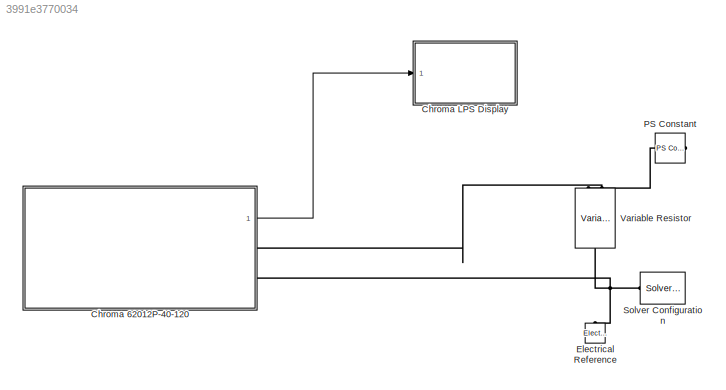
MODEL slx_3991e3770034
KIND model
CONFIG AbsTol = auto
CONFIG EnableMultiTasking = off
CONFIG FixedStep = 1e-4
CONFIG MaxStep = auto
CONFIG MinStep = auto
CONFIG RelTol = 1e-2
CONFIG SampleTimeConstraint = Unconstrained
CONFIG SolverName = ode45
CONFIG StartTime = 0.0
CONFIG StopTime = tFinal
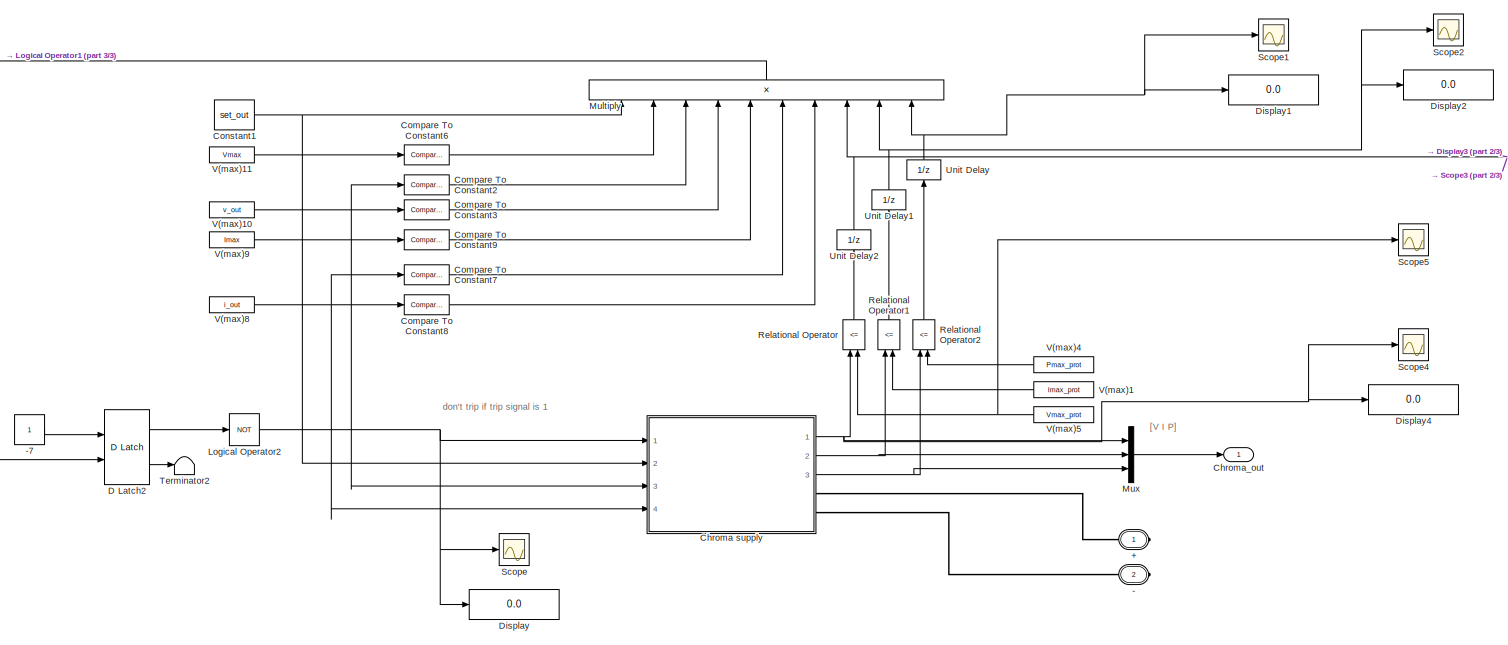
[diagram: Chroma 62012P-40-120 - part 1/3, most of the canvas]
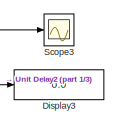
[diagram: Chroma 62012P-40-120 - part 2/3, top right region]
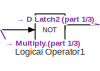
[diagram: Chroma 62012P-40-120 - part 3/3, bottom left region]
BLOCK [SubSystem] Chroma 62012P-40-120
  Ports = [0, 1, 0, 0, 0, 0, 2]
  RequestExecContextInheritance = off
BLOCK [PMIOPort] Chroma 62012P-40-120/+
  NameLocation = top
  Side = Right
BLOCK [PMIOPort] Chroma 62012P-40-120/-
  NameLocation = top
  Port = 2
  Side = Right
BLOCK [Constant] Chroma 62012P-40-120/-7
  OutDataTypeStr = boolean
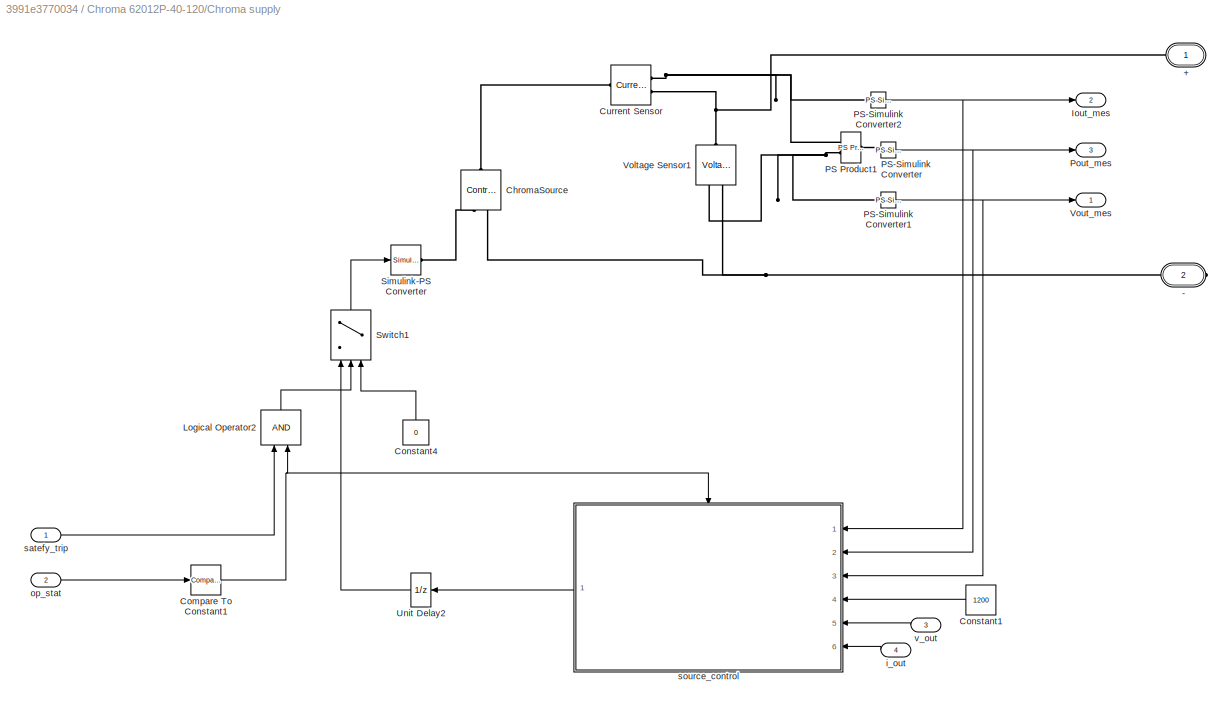
BLOCK [SubSystem] Chroma 62012P-40-120/Chroma supply
  Ports = [4, 3, 0, 0, 0, 0, 2]
  RequestExecContextInheritance = off
BLOCK [PMIOPort] Chroma 62012P-40-120/Chroma supply/+
  NameLocation = top
  Side = Right
  Tag = PMCPort
BLOCK [PMIOPort] Chroma 62012P-40-120/Chroma supply/-
  NameLocation = top
  Port = 2
  Side = Right
  Tag = PMCPort
BLOCK [Reference] Chroma 62012P-40-120/Chroma supply/ChromaSource  REF=fl_lib/Electrical/Electrical Sources/Controlled Voltage
Source
  NameLocation = right
  Ports = [0, 0, 0, 0, 0, 1, 2]
  SourceBlock = fl_lib/Electrical/Electrical Sources/Controlled Voltage\nSource
  SourceProductBaseCode = SS
  SourceType = Controlled Voltage\nSource
BLOCK [Reference] Chroma 62012P-40-120/Chroma supply/Compare To Constant1  REF=simulink/Logic and Bit
Operations/Compare
To Constant
  Ports = [1, 1]
  SourceBlock = simulink/Logic and Bit\nOperations/Compare\nTo Constant
  SourceProductBaseCode = SL
  SourceType = Compare To Constant
BLOCK [Constant] Chroma 62012P-40-120/Chroma supply/Constant1
  Value = 1200
BLOCK [Constant] Chroma 62012P-40-120/Chroma supply/Constant4
  NameLocation = right
  Value = 0
BLOCK [Reference] Chroma 62012P-40-120/Chroma supply/Current Sensor  REF=fl_lib/Electrical/Electrical Sensors/Current Sensor
  Ports = [0, 0, 0, 0, 0, 1, 2]
  SourceBlock = fl_lib/Electrical/Electrical Sensors/Current Sensor
  SourceProductBaseCode = SS
  SourceType = Current Sensor
BLOCK [Outport] Chroma 62012P-40-120/Chroma supply/Iout_mes
  Port = 2
  VectorParamsAs1DForOutWhenUnconnected = off
BLOCK [Logic] Chroma 62012P-40-120/Chroma supply/Logical Operator2
  AllPortsSameDT = off
  NameLocation = left
  OutDataTypeStr = boolean
  Ports = [2, 1]
BLOCK [Reference] Chroma 62012P-40-120/Chroma supply/PS Product1  REF=fl_lib/Physical Signals/Functions/PS Product
  Ports = [0, 0, 0, 0, 0, 2, 1]
  SourceBlock = fl_lib/Physical Signals/Functions/PS Product
  SourceProductBaseCode = SS
  SourceType = PS Product
BLOCK [Reference] Chroma 62012P-40-120/Chroma supply/PS-Simulink Converter  REF=nesl_utility/PS-Simulink
Converter
  Ports = [0, 1, 0, 0, 0, 1]
  SourceBlock = nesl_utility/PS-Simulink\nConverter
  SourceProductBaseCode = SS
  SourceType = PS-Simulink\nConverter
BLOCK [Reference] Chroma 62012P-40-120/Chroma supply/PS-Simulink Converter1  REF=nesl_utility/PS-Simulink
Converter
  Ports = [0, 1, 0, 0, 0, 1]
  SourceBlock = nesl_utility/PS-Simulink\nConverter
  SourceProductBaseCode = SS
  SourceType = PS-Simulink\nConverter
BLOCK [Reference] Chroma 62012P-40-120/Chroma supply/PS-Simulink Converter2  REF=nesl_utility/PS-Simulink
Converter
  Ports = [0, 1, 0, 0, 0, 1]
  SourceBlock = nesl_utility/PS-Simulink\nConverter
  SourceProductBaseCode = SS
  SourceType = PS-Simulink\nConverter
BLOCK [Outport] Chroma 62012P-40-120/Chroma supply/Pout_mes
  Port = 3
  VectorParamsAs1DForOutWhenUnconnected = off
BLOCK [Reference] Chroma 62012P-40-120/Chroma supply/Simulink-PS Converter  REF=nesl_utility/Simulink-PS
Converter
  Ports = [1, 0, 0, 0, 0, 0, 1]
  SourceBlock = nesl_utility/Simulink-PS\nConverter
  SourceProductBaseCode = SS
  SourceType = Simulink-PS\nConverter
BLOCK [Switch] Chroma 62012P-40-120/Chroma supply/Switch1
  Criteria = u2 > Threshold
  InputSameDT = off
  NameLocation = left
BLOCK [UnitDelay] Chroma 62012P-40-120/Chroma supply/Unit Delay2
  HasFrameUpgradeWarning = on
  InitialCondition = 1
  NameLocation = top
  SampleTime = -1
BLOCK [Reference] Chroma 62012P-40-120/Chroma supply/Voltage Sensor1  REF=fl_lib/Electrical/Electrical Sensors/Voltage Sensor
  NameLocation = right
  Ports = [0, 0, 0, 0, 0, 1, 2]
  SourceBlock = fl_lib/Electrical/Electrical Sensors/Voltage Sensor
  SourceProductBaseCode = SS
  SourceType = Voltage Sensor
BLOCK [Outport] Chroma 62012P-40-120/Chroma supply/Vout_mes
  VectorParamsAs1DForOutWhenUnconnected = off
BLOCK [Inport] Chroma 62012P-40-120/Chroma supply/i_out
  Port = 4
BLOCK [Inport] Chroma 62012P-40-120/Chroma supply/op_stat 
  Port = 2
BLOCK [Inport] Chroma 62012P-40-120/Chroma supply/satefy_trip
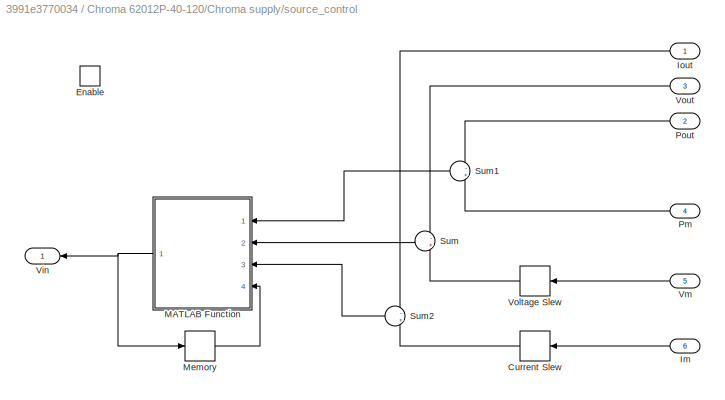
BLOCK [SubSystem] Chroma 62012P-40-120/Chroma supply/source_control
  Ports = [6, 1, 1]
  RequestExecContextInheritance = off
BLOCK [RateLimiter] Chroma 62012P-40-120/Chroma supply/source_control/Current Slew
  FallingSlewLimit = -Islew
  RisingSlewLimit = Islew
BLOCK [EnablePort] Chroma 62012P-40-120/Chroma supply/source_control/Enable
  Ports = []
BLOCK [Inport] Chroma 62012P-40-120/Chroma supply/source_control/Im
  Port = 6
BLOCK [Inport] Chroma 62012P-40-120/Chroma supply/source_control/Iout
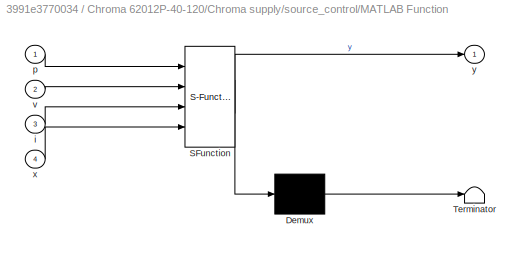
BLOCK [SubSystem] Chroma 62012P-40-120/Chroma supply/source_control/MATLAB Function
  ErrorFcn = Stateflow.Translate.translate
  PermitHierarchicalResolution = ExplicitOnly
  Ports = [4, 1]
  RequestExecContextInheritance = off
  SFBlockType = MATLAB Function
  TreatAsAtomicUnit = on
BLOCK [Demux] Chroma 62012P-40-120/Chroma supply/source_control/MATLAB Function/ Demux 
  Outputs = 1
  Ports = [1, 1]
BLOCK [S-Function] Chroma 62012P-40-120/Chroma supply/source_control/MATLAB Function/ SFunction 
  EnableBusSupport = on
  FunctionName = sf_sfun
  PortCounts = [4 2]
  Ports = [4, 2]
  SFcnIsStateOwnerBlock = off
  SFunctionDeploymentMode = off
  Tag = Stateflow S-Function 1
BLOCK [Terminator] Chroma 62012P-40-120/Chroma supply/source_control/MATLAB Function/ Terminator 
BLOCK [Inport] Chroma 62012P-40-120/Chroma supply/source_control/MATLAB Function/i
  Port = 3
BLOCK [Inport] Chroma 62012P-40-120/Chroma supply/source_control/MATLAB Function/p
BLOCK [Inport] Chroma 62012P-40-120/Chroma supply/source_control/MATLAB Function/v
  Port = 2
BLOCK [Inport] Chroma 62012P-40-120/Chroma supply/source_control/MATLAB Function/x
  Port = 4
BLOCK [Outport] Chroma 62012P-40-120/Chroma supply/source_control/MATLAB Function/y
  VectorParamsAs1DForOutWhenUnconnected = off
BLOCK [Memory] Chroma 62012P-40-120/Chroma supply/source_control/Memory
BLOCK [Inport] Chroma 62012P-40-120/Chroma supply/source_control/Pm
  Port = 4
BLOCK [Inport] Chroma 62012P-40-120/Chroma supply/source_control/Pout
  Port = 2
BLOCK [Sum] Chroma 62012P-40-120/Chroma supply/source_control/Sum
  Inputs = -+
  NameLocation = top
  Ports = [2, 1]
BLOCK [Sum] Chroma 62012P-40-120/Chroma supply/source_control/Sum1
  Inputs = -+
  NameLocation = top
  Ports = [2, 1]
BLOCK [Sum] Chroma 62012P-40-120/Chroma supply/source_control/Sum2
  Inputs = -+
  NameLocation = top
  Ports = [2, 1]
BLOCK [Outport] Chroma 62012P-40-120/Chroma supply/source_control/Vin
  NameLocation = top
  VectorParamsAs1DForOutWhenUnconnected = off
BLOCK [Inport] Chroma 62012P-40-120/Chroma supply/source_control/Vm
  Port = 5
BLOCK [RateLimiter] Chroma 62012P-40-120/Chroma supply/source_control/Voltage Slew
  FallingSlewLimit = -Vslew
  RisingSlewLimit = Vslew
BLOCK [Inport] Chroma 62012P-40-120/Chroma supply/source_control/Vout
  Port = 3
BLOCK [Inport] Chroma 62012P-40-120/Chroma supply/v_out
  Port = 3
BLOCK [Outport] Chroma 62012P-40-120/Chroma_out
  VectorParamsAs1DForOutWhenUnconnected = off
BLOCK [Reference] Chroma 62012P-40-120/Compare To Constant2  REF=simulink/Logic and Bit
Operations/Compare
To Constant
  Ports = [1, 1]
  SourceBlock = simulink/Logic and Bit\nOperations/Compare\nTo Constant
  SourceProductBaseCode = SL
  SourceType = Compare To Constant
BLOCK [Reference] Chroma 62012P-40-120/Compare To Constant3  REF=simulink/Logic and Bit
Operations/Compare
To Constant
  Ports = [1, 1]
  SourceBlock = simulink/Logic and Bit\nOperations/Compare\nTo Constant
  SourceProductBaseCode = SL
  SourceType = Compare To Constant
BLOCK [Reference] Chroma 62012P-40-120/Compare To Constant6  REF=simulink/Logic and Bit
Operations/Compare
To Constant
  Ports = [1, 1]
  SourceBlock = simulink/Logic and Bit\nOperations/Compare\nTo Constant
  SourceProductBaseCode = SL
  SourceType = Compare To Constant
BLOCK [Reference] Chroma 62012P-40-120/Compare To Constant7  REF=simulink/Logic and Bit
Operations/Compare
To Constant
  Ports = [1, 1]
  SourceBlock = simulink/Logic and Bit\nOperations/Compare\nTo Constant
  SourceProductBaseCode = SL
  SourceType = Compare To Constant
BLOCK [Reference] Chroma 62012P-40-120/Compare To Constant8  REF=simulink/Logic and Bit
Operations/Compare
To Constant
  Ports = [1, 1]
  SourceBlock = simulink/Logic and Bit\nOperations/Compare\nTo Constant
  SourceProductBaseCode = SL
  SourceType = Compare To Constant
BLOCK [Reference] Chroma 62012P-40-120/Compare To Constant9  REF=simulink/Logic and Bit
Operations/Compare
To Constant
  Ports = [1, 1]
  SourceBlock = simulink/Logic and Bit\nOperations/Compare\nTo Constant
  SourceProductBaseCode = SL
  SourceType = Compare To Constant
BLOCK [Constant] Chroma 62012P-40-120/Constant1
  Value = set_out
BLOCK [Reference] Chroma 62012P-40-120/D Latch2  REF=simulink_extras/Flip Flops/D Latch
  Ports = [2, 2]
  SourceBlock = simulink_extras/Flip Flops/D Latch
  SourceProductBaseCode = SL
  SourceType = DLatch
BLOCK [Display] Chroma 62012P-40-120/Display
  Decimation = 1
  Ports = [1]
BLOCK [Display] Chroma 62012P-40-120/Display1
  Decimation = 1
  Ports = [1]
BLOCK [Display] Chroma 62012P-40-120/Display2
  Decimation = 1
  Ports = [1]
BLOCK [Display] Chroma 62012P-40-120/Display3
  Decimation = 1
  Ports = [1]
BLOCK [Display] Chroma 62012P-40-120/Display4
  Decimation = 1
  Ports = [1]
BLOCK [Logic] Chroma 62012P-40-120/Logical Operator1
  AllPortsSameDT = off
  Operator = NOT
  OutDataTypeStr = boolean
  Ports = [1, 1]
BLOCK [Logic] Chroma 62012P-40-120/Logical Operator2
  AllPortsSameDT = off
  Operator = NOT
  OutDataTypeStr = boolean
  Ports = [1, 1]
BLOCK [Product] Chroma 62012P-40-120/Multiply
  Inputs = 10
  NameLocation = right
  Ports = [10, 1]
BLOCK [Mux] Chroma 62012P-40-120/Mux
  DisplayOption = bar
  Inputs = 3
  Ports = [3, 1]
BLOCK [RelationalOperator] Chroma 62012P-40-120/Relational Operator
  InputSameDT = off
  NameLocation = right
  Operator = <=
  OutDataTypeStr = boolean
  Ports = [2, 1]
  RndMeth = Simplest
BLOCK [RelationalOperator] Chroma 62012P-40-120/Relational Operator1
  InputSameDT = off
  NameLocation = right
  Operator = <=
  OutDataTypeStr = boolean
  Ports = [2, 1]
  RndMeth = Simplest
BLOCK [RelationalOperator] Chroma 62012P-40-120/Relational Operator2
  InputSameDT = off
  NameLocation = right
  Operator = <=
  OutDataTypeStr = boolean
  Ports = [2, 1]
  RndMeth = Simplest
BLOCK [Scope] Chroma 62012P-40-120/Scope
  Floating = off
  NumInputPorts = 1
  Ports = [1]
  ScopeSpecificationString = Simulink.scopes.TimeScopeBlockCfg('CurrentConfiguration', extmgr.ConfigurationSet(extmgr.Configuration('Core','General UI',true),extmgr.Configuration('Core','Source UI',true),extmgr.Configuration('Sources','WiredSimulink',true,'DataLoggingVariableName','ScopeData1'),extmgr.Configuration('Visuals','Time Domain',true,'SerializedDisplays',{struct('MinYLimReal','0.9','MaxYLimReal','1.1','YLabelReal','...<+1342ch>
BLOCK [Scope] Chroma 62012P-40-120/Scope1
  Floating = off
  NumInputPorts = 1
  Ports = [1]
  ScopeSpecificationString = Simulink.scopes.TimeScopeBlockCfg('CurrentConfiguration', extmgr.ConfigurationSet(extmgr.Configuration('Core','General UI',true),extmgr.Configuration('Core','Source UI',true),extmgr.Configuration('Sources','WiredSimulink',true,'DataLoggingVariableName','ScopeData2'),extmgr.Configuration('Visuals','Time Domain',true,'SerializedDisplays',{struct('MinYLimReal','0.9','MaxYLimReal','1.1','YLabelReal','...<+1335ch>
BLOCK [Scope] Chroma 62012P-40-120/Scope2
  Floating = off
  NumInputPorts = 1
  Ports = [1]
  ScopeSpecificationString = Simulink.scopes.TimeScopeBlockCfg('CurrentConfiguration', extmgr.ConfigurationSet(extmgr.Configuration('Core','General UI',true),extmgr.Configuration('Core','Source UI',true),extmgr.Configuration('Sources','WiredSimulink',true,'DataLoggingVariableName','ScopeData3'),extmgr.Configuration('Visuals','Time Domain',true,'SerializedDisplays',{struct('MinYLimReal','0.9','MaxYLimReal','1.1','YLabelReal','...<+1336ch>
BLOCK [Scope] Chroma 62012P-40-120/Scope3
  Floating = off
  NumInputPorts = 1
  Ports = [1]
  ScopeSpecificationString = Simulink.scopes.TimeScopeBlockCfg('CurrentConfiguration', extmgr.ConfigurationSet(extmgr.Configuration('Core','General UI',true),extmgr.Configuration('Core','Source UI',true),extmgr.Configuration('Sources','WiredSimulink',true,'DataLoggingVariableName','ScopeData4'),extmgr.Configuration('Visuals','Time Domain',true,'SerializedDisplays',{struct('MinYLimReal','0.9','MaxYLimReal','1.1','YLabelReal','...<+1336ch>
BLOCK [Scope] Chroma 62012P-40-120/Scope4
  Floating = off
  NumInputPorts = 1
  Ports = [1]
  ScopeSpecificationString = Simulink.scopes.TimeScopeBlockCfg('CurrentConfiguration', extmgr.ConfigurationSet(extmgr.Configuration('Core','General UI',true),extmgr.Configuration('Core','Source UI',true),extmgr.Configuration('Sources','WiredSimulink',true,'DataLoggingVariableName','ScopeData5'),extmgr.Configuration('Visuals','Time Domain',true,'SerializedDisplays',{struct('MinYLimReal','-3.48676','MaxYLimReal','34.22701','YLa...<+1378ch>
BLOCK [Scope] Chroma 62012P-40-120/Scope5
  Floating = off
  NumInputPorts = 1
  Ports = [1]
  ScopeSpecificationString = Simulink.scopes.TimeScopeBlockCfg('CurrentConfiguration', extmgr.ConfigurationSet(extmgr.Configuration('Core','General UI',true),extmgr.Configuration('Core','Source UI',true),extmgr.Configuration('Sources','WiredSimulink',true,'DataLoggingVariableName','ScopeData6'),extmgr.Configuration('Visuals','Time Domain',true,'SerializedDisplays',{struct('MinYLimReal','34.00000','MaxYLimReal','54.00000','YLa...<+1513ch>
BLOCK [Terminator] Chroma 62012P-40-120/Terminator2
BLOCK [UnitDelay] Chroma 62012P-40-120/Unit Delay
  HasFrameUpgradeWarning = on
  InitialCondition = 1
  NameLocation = right
  SampleTime = -1
BLOCK [UnitDelay] Chroma 62012P-40-120/Unit Delay1
  HasFrameUpgradeWarning = on
  InitialCondition = 1
  NameLocation = right
  SampleTime = -1
BLOCK [UnitDelay] Chroma 62012P-40-120/Unit Delay2
  HasFrameUpgradeWarning = on
  InitialCondition = 1
  NameLocation = right
  SampleTime = -1
BLOCK [Constant] Chroma 62012P-40-120/V(max)1
  NameLocation = top
  Value = Imax_prot
BLOCK [Constant] Chroma 62012P-40-120/V(max)10
  Value = v_out
BLOCK [Constant] Chroma 62012P-40-120/V(max)11
  Value = Vmax
BLOCK [Constant] Chroma 62012P-40-120/V(max)4
  NameLocation = top
  Value = Pmax_prot
BLOCK [Constant] Chroma 62012P-40-120/V(max)5
  NameLocation = top
  Value = Vmax_prot
BLOCK [Constant] Chroma 62012P-40-120/V(max)8
  Value = i_out
BLOCK [Constant] Chroma 62012P-40-120/V(max)9
  Value = Imax
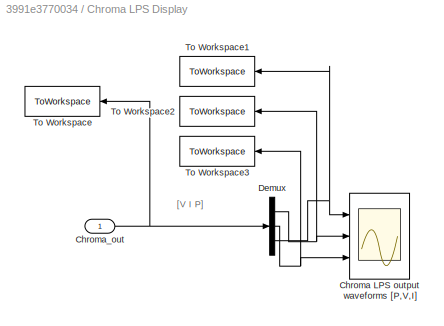
BLOCK [SubSystem] Chroma LPS Display
  Ports = [1]
  RequestExecContextInheritance = off
BLOCK [Scope] Chroma LPS Display/Chroma LPS output waveforms [P,V,I]
  Floating = off
  NumInputPorts = 3
  Ports = [3]
  ScopeSpecificationString = Simulink.scopes.TimeScopeBlockCfg('CurrentConfiguration', extmgr.ConfigurationSet(extmgr.Configuration('Core','General UI',true,'FigureColor',[1 1 1]),extmgr.Configuration('Core','Source UI',true),extmgr.Configuration('Sources','WiredSimulink',true),extmgr.Configuration('Visuals','Time Domain',true,'PlotType','Line','SerializedDisplays',{struct('MinYLimReal','-23.17042','MaxYLimReal','208.69578','...<+3438ch>
BLOCK [Inport] Chroma LPS Display/Chroma_out
BLOCK [Demux] Chroma LPS Display/Demux
  Outputs = 3
  Ports = [1, 3]
BLOCK [ToWorkspace] Chroma LPS Display/To Workspace
  FixptAsFi = on
  MaxDataPoints = inf
  Ports = [1]
  SampleTime = -1
  SaveFormat = Timeseries
  VariableName = chromaOut
BLOCK [ToWorkspace] Chroma LPS Display/To Workspace1
  FixptAsFi = on
  MaxDataPoints = inf
  Ports = [1]
  SampleTime = -1
  SaveFormat = Timeseries
  VariableName = powerOut
BLOCK [ToWorkspace] Chroma LPS Display/To Workspace2
  FixptAsFi = on
  MaxDataPoints = inf
  Ports = [1]
  SampleTime = -1
  SaveFormat = Timeseries
  VariableName = voltageOut
BLOCK [ToWorkspace] Chroma LPS Display/To Workspace3
  FixptAsFi = on
  MaxDataPoints = inf
  Ports = [1]
  SampleTime = -1
  SaveFormat = Timeseries
  VariableName = currentOut
BLOCK [Reference] Electrical Reference  REF=fl_lib/Electrical/Electrical Elements/Electrical Reference
  NameLocation = right
  Ports = [0, 0, 0, 0, 0, 1]
  SourceBlock = fl_lib/Electrical/Electrical Elements/Electrical Reference
  SourceProductBaseCode = SS
  SourceType = Electrical Reference
BLOCK [Reference] PS Constant  REF=fl_lib/Physical Signals/Sources/PS Constant
  NameLocation = right
  Ports = [0, 0, 0, 0, 0, 0, 1]
  SourceBlock = fl_lib/Physical Signals/Sources/PS Constant
  SourceProductBaseCode = SS
  SourceType = PS Constant
BLOCK [Reference] Solver Configuration  REF=nesl_utility/Solver
Configuration
  Ports = [0, 0, 0, 0, 0, 0, 1]
  SourceBlock = nesl_utility/Solver\nConfiguration
  SourceProductBaseCode = SS
  SourceType = Solver\nConfiguration
BLOCK [Reference] Variable Resistor  REF=fl_lib/Electrical/Electrical Elements/Variable Resistor
  NameLocation = left
  Ports = [0, 0, 0, 0, 0, 2, 1]
  SourceBlock = fl_lib/Electrical/Electrical Elements/Variable Resistor
  SourceProductBaseCode = SS
  SourceType = Variable Resistor
ANNOTATION Chroma 62012P-40-120: don't trip if trip signal is 1
ANNOTATION Chroma 62012P-40-120: [V I P]
ANNOTATION Chroma LPS Display: [V I P]
LINE Chroma 62012P-40-120/-7:1 -> Chroma 62012P-40-120/D Latch2:1
NET Chroma 62012P-40-120/Chroma supply/Compare To Constant1:1 -> Chroma 62012P-40-120/Chroma supply/Logical Operator2:2, Chroma 62012P-40-120/Chroma supply/source_control:enable
LINE Chroma 62012P-40-120/Chroma supply/Constant1:1 -> Chroma 62012P-40-120/Chroma supply/source_control:4
LINE Chroma 62012P-40-120/Chroma supply/Constant4:1 -> Chroma 62012P-40-120/Chroma supply/Switch1:3
LINE Chroma 62012P-40-120/Chroma supply/Logical Operator2:1 -> Chroma 62012P-40-120/Chroma supply/Switch1:2
NET Chroma 62012P-40-120/Chroma supply/PS-Simulink Converter1:1 -> Chroma 62012P-40-120/Chroma supply/Vout_mes:1, Chroma 62012P-40-120/Chroma supply/source_control:3
NET Chroma 62012P-40-120/Chroma supply/PS-Simulink Converter2:1 -> Chroma 62012P-40-120/Chroma supply/Iout_mes:1, Chroma 62012P-40-120/Chroma supply/source_control:1
NET Chroma 62012P-40-120/Chroma supply/PS-Simulink Converter:1 -> Chroma 62012P-40-120/Chroma supply/Pout_mes:1, Chroma 62012P-40-120/Chroma supply/source_control:2
LINE Chroma 62012P-40-120/Chroma supply/Switch1:1 -> Chroma 62012P-40-120/Chroma supply/Simulink-PS Converter:1
LINE Chroma 62012P-40-120/Chroma supply/Unit Delay2:1 -> Chroma 62012P-40-120/Chroma supply/Switch1:1
LINE Chroma 62012P-40-120/Chroma supply/i_out:1 -> Chroma 62012P-40-120/Chroma supply/source_control:6
LINE Chroma 62012P-40-120/Chroma supply/op_stat :1 -> Chroma 62012P-40-120/Chroma supply/Compare To Constant1:1
LINE Chroma 62012P-40-120/Chroma supply/satefy_trip:1 -> Chroma 62012P-40-120/Chroma supply/Logical Operator2:1
LINE Chroma 62012P-40-120/Chroma supply/source_control/Current Slew:1 -> Chroma 62012P-40-120/Chroma supply/source_control/Sum2:2
LINE Chroma 62012P-40-120/Chroma supply/source_control/Im:1 -> Chroma 62012P-40-120/Chroma supply/source_control/Current Slew:1
LINE Chroma 62012P-40-120/Chroma supply/source_control/Iout:1 -> Chroma 62012P-40-120/Chroma supply/source_control/Sum2:1
NET Chroma 62012P-40-120/Chroma supply/source_control/MATLAB Function:1 -> Chroma 62012P-40-120/Chroma supply/source_control/Memory:1, Chroma 62012P-40-120/Chroma supply/source_control/Vin:1
LINE Chroma 62012P-40-120/Chroma supply/source_control/Memory:1 -> Chroma 62012P-40-120/Chroma supply/source_control/MATLAB Function:4
LINE Chroma 62012P-40-120/Chroma supply/source_control/Pm:1 -> Chroma 62012P-40-120/Chroma supply/source_control/Sum1:2
LINE Chroma 62012P-40-120/Chroma supply/source_control/Pout:1 -> Chroma 62012P-40-120/Chroma supply/source_control/Sum1:1
LINE Chroma 62012P-40-120/Chroma supply/source_control/Sum1:1 -> Chroma 62012P-40-120/Chroma supply/source_control/MATLAB Function:1
LINE Chroma 62012P-40-120/Chroma supply/source_control/Sum2:1 -> Chroma 62012P-40-120/Chroma supply/source_control/MATLAB Function:3
LINE Chroma 62012P-40-120/Chroma supply/source_control/Sum:1 -> Chroma 62012P-40-120/Chroma supply/source_control/MATLAB Function:2
LINE Chroma 62012P-40-120/Chroma supply/source_control/Vm:1 -> Chroma 62012P-40-120/Chroma supply/source_control/Voltage Slew:1
LINE Chroma 62012P-40-120/Chroma supply/source_control/Voltage Slew:1 -> Chroma 62012P-40-120/Chroma supply/source_control/Sum:2
LINE Chroma 62012P-40-120/Chroma supply/source_control/Vout:1 -> Chroma 62012P-40-120/Chroma supply/source_control/Sum:1
LINE Chroma 62012P-40-120/Chroma supply/source_control:1 -> Chroma 62012P-40-120/Chroma supply/Unit Delay2:1
LINE Chroma 62012P-40-120/Chroma supply/v_out:1 -> Chroma 62012P-40-120/Chroma supply/source_control:5
NET Chroma 62012P-40-120/Chroma supply:1 -> Chroma 62012P-40-120/Display4:1, Chroma 62012P-40-120/Mux:1, Chroma 62012P-40-120/Relational Operator:1, Chroma 62012P-40-120/Scope4:1
NET Chroma 62012P-40-120/Chroma supply:2 -> Chroma 62012P-40-120/Mux:2, Chroma 62012P-40-120/Relational Operator1:1
NET Chroma 62012P-40-120/Chroma supply:3 -> Chroma 62012P-40-120/Mux:3, Chroma 62012P-40-120/Relational Operator2:1
LINE Chroma 62012P-40-120/Compare To Constant2:1 -> Chroma 62012P-40-120/Multiply:3
LINE Chroma 62012P-40-120/Compare To Constant3:1 -> Chroma 62012P-40-120/Multiply:4
LINE Chroma 62012P-40-120/Compare To Constant6:1 -> Chroma 62012P-40-120/Multiply:2
LINE Chroma 62012P-40-120/Compare To Constant7:1 -> Chroma 62012P-40-120/Multiply:6
LINE Chroma 62012P-40-120/Compare To Constant8:1 -> Chroma 62012P-40-120/Multiply:7
LINE Chroma 62012P-40-120/Compare To Constant9:1 -> Chroma 62012P-40-120/Multiply:5
NET Chroma 62012P-40-120/Constant1:1 -> Chroma 62012P-40-120/Chroma supply:2, Chroma 62012P-40-120/Multiply:1
LINE Chroma 62012P-40-120/D Latch2:1 -> Chroma 62012P-40-120/Logical Operator2:1
LINE Chroma 62012P-40-120/D Latch2:2 -> Chroma 62012P-40-120/Terminator2:1
LINE Chroma 62012P-40-120/Logical Operator1:1 -> Chroma 62012P-40-120/D Latch2:2
NET Chroma 62012P-40-120/Logical Operator2:1 -> Chroma 62012P-40-120/Chroma supply:1, Chroma 62012P-40-120/Display:1, Chroma 62012P-40-120/Scope:1
LINE Chroma 62012P-40-120/Multiply:1 -> Chroma 62012P-40-120/Logical Operator1:1
LINE Chroma 62012P-40-120/Mux:1 -> Chroma 62012P-40-120/Chroma_out:1
LINE Chroma 62012P-40-120/Relational Operator1:1 -> Chroma 62012P-40-120/Unit Delay1:1
LINE Chroma 62012P-40-120/Relational Operator2:1 -> Chroma 62012P-40-120/Unit Delay:1
LINE Chroma 62012P-40-120/Relational Operator:1 -> Chroma 62012P-40-120/Unit Delay2:1
NET Chroma 62012P-40-120/Unit Delay1:1 -> Chroma 62012P-40-120/Display2:1, Chroma 62012P-40-120/Multiply:9, Chroma 62012P-40-120/Scope2:1
NET Chroma 62012P-40-120/Unit Delay2:1 -> Chroma 62012P-40-120/Display3:1, Chroma 62012P-40-120/Multiply:8, Chroma 62012P-40-120/Scope3:1
NET Chroma 62012P-40-120/Unit Delay:1 -> Chroma 62012P-40-120/Display1:1, Chroma 62012P-40-120/Multiply:10, Chroma 62012P-40-120/Scope1:1
NET Chroma 62012P-40-120/V(max)10:1 -> Chroma 62012P-40-120/Chroma supply:3, Chroma 62012P-40-120/Compare To Constant2:1, Chroma 62012P-40-120/Compare To Constant3:1
LINE Chroma 62012P-40-120/V(max)11:1 -> Chroma 62012P-40-120/Compare To Constant6:1
LINE Chroma 62012P-40-120/V(max)1:1 -> Chroma 62012P-40-120/Relational Operator1:2
LINE Chroma 62012P-40-120/V(max)4:1 -> Chroma 62012P-40-120/Relational Operator2:2
NET Chroma 62012P-40-120/V(max)5:1 -> Chroma 62012P-40-120/Relational Operator:2, Chroma 62012P-40-120/Scope5:1
NET Chroma 62012P-40-120/V(max)8:1 -> Chroma 62012P-40-120/Chroma supply:4, Chroma 62012P-40-120/Compare To Constant7:1, Chroma 62012P-40-120/Compare To Constant8:1
LINE Chroma 62012P-40-120/V(max)9:1 -> Chroma 62012P-40-120/Compare To Constant9:1
LINE Chroma 62012P-40-120:1 -> Chroma LPS Display:1
NET Chroma LPS Display/Chroma_out:1 -> Chroma LPS Display/Demux:1, Chroma LPS Display/To Workspace:1
NET Chroma LPS Display/Demux:1 -> Chroma LPS Display/Chroma LPS output waveforms [P,V,I]:2, Chroma LPS Display/To Workspace2:1
NET Chroma LPS Display/Demux:2 -> Chroma LPS Display/Chroma LPS output waveforms [P,V,I]:3, Chroma LPS Display/To Workspace3:1
NET Chroma LPS Display/Demux:3 -> Chroma LPS Display/Chroma LPS output waveforms [P,V,I]:1, Chroma LPS Display/To Workspace1:1
PLINE Chroma 62012P-40-120/+:RConn1 -- Chroma 62012P-40-120/Chroma supply:RConn1
PLINE Chroma 62012P-40-120/-:RConn1 -- Chroma 62012P-40-120/Chroma supply:RConn2
PNET net1: Chroma 62012P-40-120/Chroma supply/+:RConn1 -- Chroma 62012P-40-120/Chroma supply/Current Sensor:RConn2 -- Chroma 62012P-40-120/Chroma supply/Voltage Sensor1:LConn1
PNET net2: Chroma 62012P-40-120/Chroma supply/-:RConn1 -- Chroma 62012P-40-120/Chroma supply/ChromaSource:RConn2 -- Chroma 62012P-40-120/Chroma supply/Voltage Sensor1:RConn2
PLINE Chroma 62012P-40-120/Chroma supply/ChromaSource:LConn1 -- Chroma 62012P-40-120/Chroma supply/Current Sensor:LConn1
PLINE Chroma 62012P-40-120/Chroma supply/ChromaSource:RConn1 -- Chroma 62012P-40-120/Chroma supply/Simulink-PS Converter:RConn1
PNET net3: Chroma 62012P-40-120/Chroma supply/Current Sensor:RConn1 -- Chroma 62012P-40-120/Chroma supply/PS Product1:LConn1 -- Chroma 62012P-40-120/Chroma supply/PS-Simulink Converter2:LConn1
PNET net4: Chroma 62012P-40-120/Chroma supply/PS Product1:LConn2 -- Chroma 62012P-40-120/Chroma supply/PS-Simulink Converter1:LConn1 -- Chroma 62012P-40-120/Chroma supply/Voltage Sensor1:RConn1
PLINE Chroma 62012P-40-120/Chroma supply/PS Product1:RConn1 -- Chroma 62012P-40-120/Chroma supply/PS-Simulink Converter:LConn1
PLINE Chroma 62012P-40-120:RConn1 -- Variable Resistor:LConn2
PNET net5: Chroma 62012P-40-120:RConn2 -- Electrical Reference:LConn1 -- Solver Configuration:RConn1 -- Variable Resistor:RConn1
PLINE PS Constant:RConn1 -- Variable Resistor:LConn1
note: NET lines group one-source signal fan-out (src -> all destinations, sorted); 1:1 wires keep LINE; PNET lines group multi-terminal physical nets as a canonical sorted terminal list (undirected conserving connections); 2-terminal nets keep the pairwise PLINE form
CHART Chroma 62012P-40-120/Chroma supply/source_control/MATLAB Function states=1 transitions=1
  STATE_LABEL 'eML_blk_kernel()'
  STATE_LABEL 'SCRIPT:\nfunction y = fcn(p,v,i,x)\ntol=1e-6;\ngain=1e-4;\nTs=1e-3;\nif p<=(-tol)\n    y=x-(gain/Ts);\nelseif i<=(-tol)\n    y=x-(gain/Ts);\nelseif v<=(-tol)\n    y=x-(gain/Ts);\nelseif v>tol;\n    y=x+(gain/Ts);\nelse\n    y=0;\nend\n'
CHART  states=0 transitions=0
